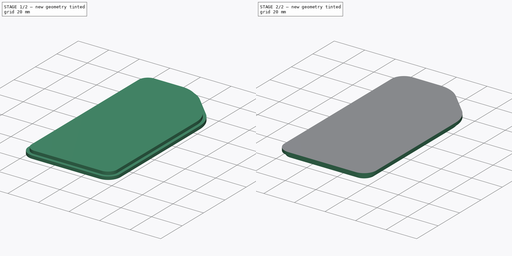
[diagram: build sequence overview — one tinted view per stage of 2, left to right]
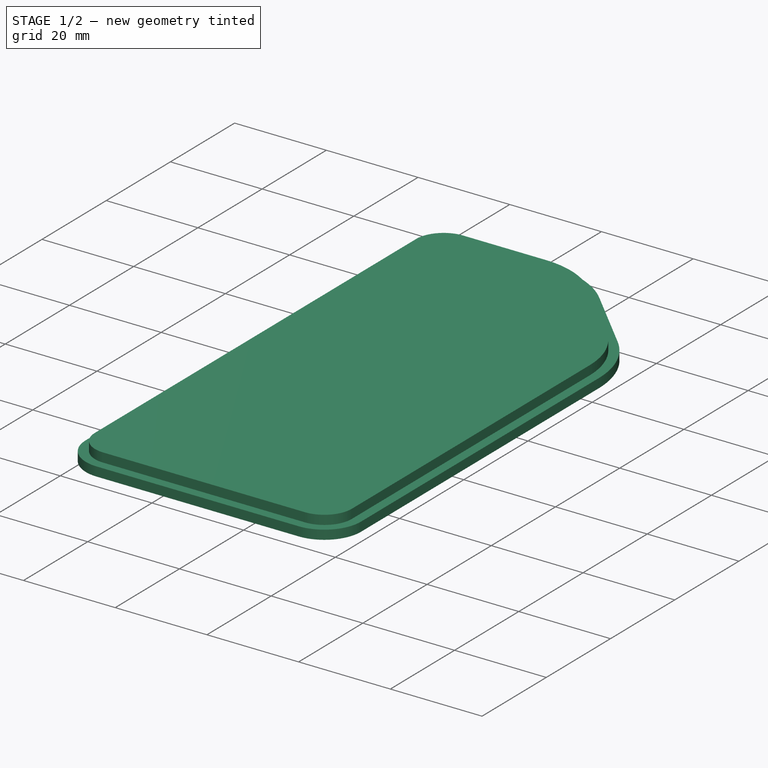
[diagram: stage 1 of 2 — iso view after this stage's code; geometry added in this stage tinted green]
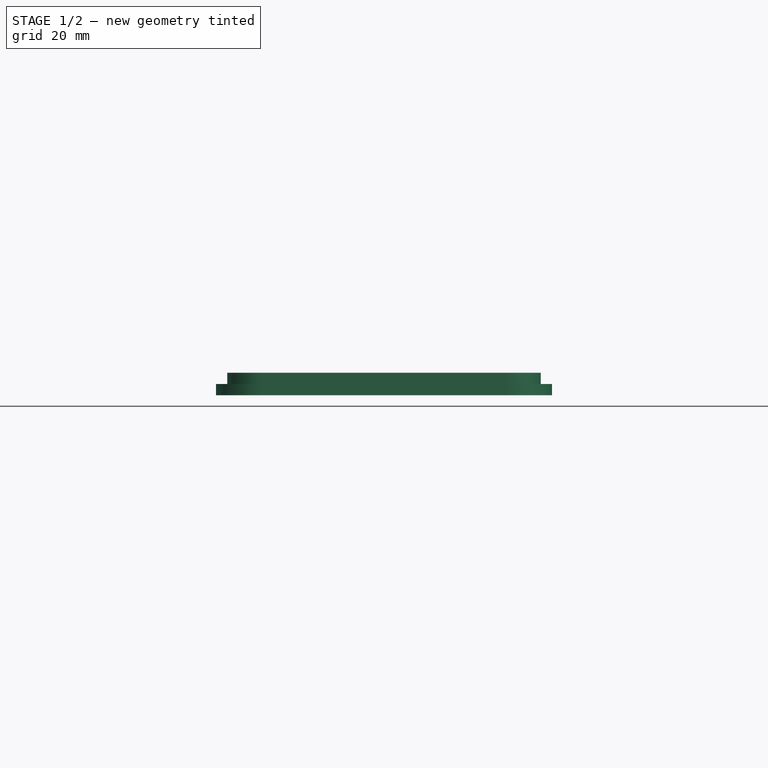
[diagram: stage 1 of 2 — front view after this stage's code; geometry added in this stage tinted green]
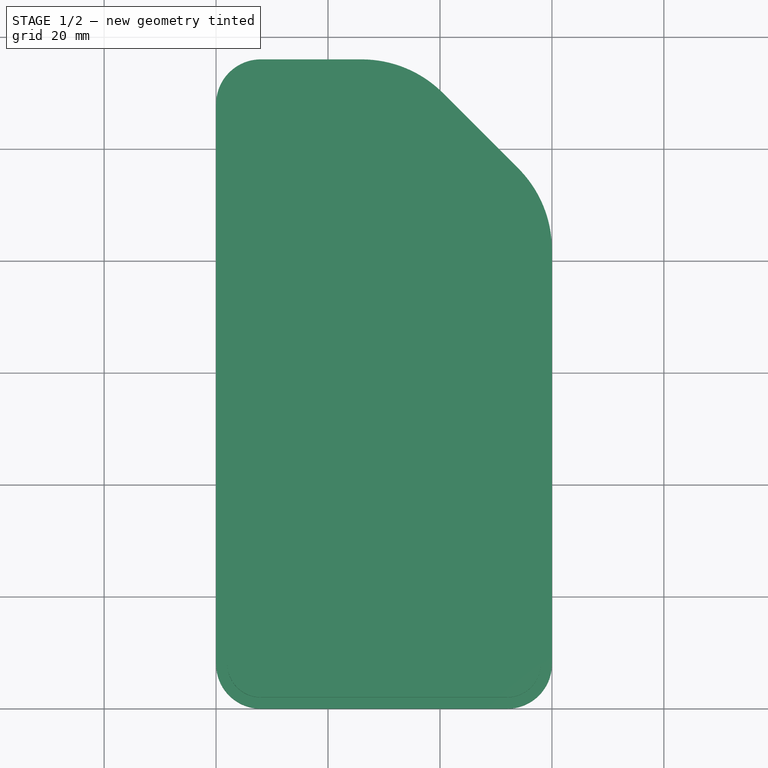
[diagram: stage 1 of 2 — top view after this stage's code; geometry added in this stage tinted green]
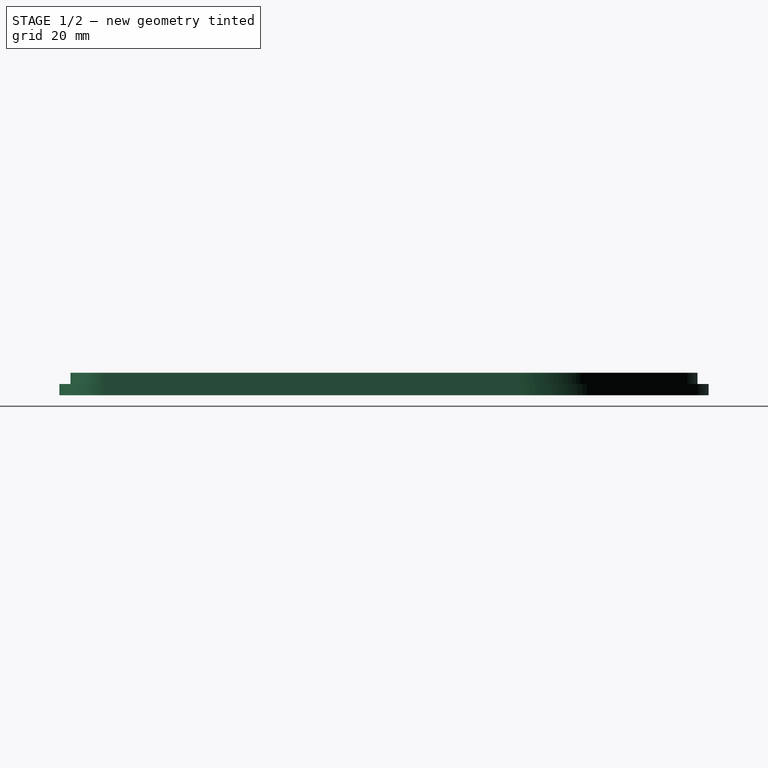
[diagram: stage 1 of 2 — right view after this stage's code; geometry added in this stage tinted green]
FCSTD DOCUMENT
Label: Lid
objects: Sketcher::SketchObject×2, PartDesign::Pad×2, Part::Mirroring×1
note: 7 computed .brp shape members not serialized (recipe doc carries the construction recipe); baked Part::Feature solids carry a one-line shape summary decoded from their .brp

FEATURE [Sketcher::SketchObject] Sketch
  sketch-geometry (10):
    g0: LineSegment StartX=60 StartY=8 StartZ=0 EndX=60 EndY=82 EndZ=0
    g1: LineSegment StartX=0 StartY=108 StartZ=0 EndX=0 EndY=8 EndZ=0
    g2: LineSegment StartX=8 StartY=116 StartZ=0 EndX=26 EndY=116 EndZ=0
    g3: LineSegment StartX=8 StartY=0 StartZ=0 EndX=52 EndY=0 EndZ=0
    g4: ArcOfCircle CenterX=8 CenterY=108 CenterZ=0 NormalX=0 NormalY=0 NormalZ=1 Radius=8 StartAngle=1.5708 EndAngle=3.14159
    g5: ArcOfCircle CenterX=52 CenterY=8 CenterZ=0 NormalX=0 NormalY=0 NormalZ=1 Radius=8 StartAngle=4.71239 EndAngle=6.28319
    g6: ArcOfCircle CenterX=8 CenterY=8 CenterZ=0 NormalX=0 NormalY=0 NormalZ=1 Radius=8 StartAngle=3.14159 EndAngle=4.71239
    g7: LineSegment StartX=40.5416 StartY=109.977 StartZ=0 EndX=53.9767 EndY=96.5416 EndZ=0
    g8: ArcOfCircle CenterX=26 CenterY=95.435 CenterZ=0 NormalX=0 NormalY=0 NormalZ=1 Radius=20.565 StartAngle=0.785399 EndAngle=1.5708
    g9: ArcOfCircle CenterX=39.435 CenterY=82 CenterZ=0 NormalX=0 NormalY=0 NormalZ=1 Radius=20.565 StartAngle=6.28319 EndAngle=7.06858
  constraints (34):
    c: Vertical(g0)
    c: Vertical(g1)
    c: Horizontal(g2)
    c: Horizontal(g3)
    c: Coincident(g6,g1)
    c: Coincident(g3,g6)
    c: Coincident(g3,g5)
    c: Coincident(g5,g0)
    c: Coincident(g2,g4)
    c: Coincident(g1,g4)
    c: Radius(g4) = 8
    c: Equal(g5,g6)
    c: Tangent(g4,g2)
    c: Tangent(g5,g3)
    c: DistanceX(g1,g0) = 60
    c: DistanceX(g1) = 0
    c: Tangent(g1,g4)
    c: Tangent(g3,g6)
    c: Tangent(g6,g1)
    c: DistanceY(g3) = 0
    c: Angle(g7) = -0.785398
    c: Coincident(g7,g8)
    c: Coincident(g8,g2)
    c: Tangent(g8,g2)
    c: Tangent(g7,g8)
    c: Coincident(g9,g7)
    c: Tangent(g9,g7)
    c: Coincident(g9,g0)
    c: Distance(g7) = 19
    c: Distance(g2) = 18
    c: Equal(g9,g8)
    c: Equal(g4,g6)
    c: Tangent(g0,g9)
    c: Tangent(g5,g0)
FEATURE [PartDesign::Pad] Pad
  Length = 2
  MirroredExtent = false
  Sketch = -> Sketch
FEATURE [Sketcher::SketchObject] Sketch001
  Placement = pos=(0,0,2) rot=(0,0,1;0rad)
  Support = -> Pad [Face12]
  sketch-geometry (10):
    g0: ArcOfCircle CenterX=8 CenterY=108 CenterZ=0 NormalX=0 NormalY=0 NormalZ=1 Radius=6 StartAngle=1.57079 EndAngle=3.14159
    g1: ArcOfCircle CenterX=26 CenterY=95.435 CenterZ=0 NormalX=0 NormalY=0 NormalZ=1 Radius=18.565 StartAngle=0.785398 EndAngle=1.5708
    g2: ArcOfCircle CenterX=39.435 CenterY=82 CenterZ=0 NormalX=0 NormalY=0 NormalZ=1 Radius=18.565 StartAngle=6.28319 EndAngle=7.06858
    g3: ArcOfCircle CenterX=52 CenterY=8 CenterZ=0 NormalX=0 NormalY=0 NormalZ=1 Radius=6 StartAngle=4.71239 EndAngle=6.28319
    g4: ArcOfCircle CenterX=8 CenterY=8 CenterZ=0 NormalX=0 NormalY=0 NormalZ=1 Radius=6 StartAngle=3.14159 EndAngle=4.71239
    g5: LineSegment StartX=8.00001 StartY=114 StartZ=0 EndX=26 EndY=114 EndZ=0
    g6: LineSegment StartX=2 StartY=108 StartZ=0 EndX=2 EndY=8 EndZ=0
    g7: LineSegment StartX=39.1274 StartY=108.562 StartZ=0 EndX=52.5624 EndY=95.1274 EndZ=0
    g8: LineSegment StartX=58 StartY=82 StartZ=0 EndX=58 EndY=8 EndZ=0
    g9: LineSegment StartX=8 StartY=2 StartZ=0 EndX=52 EndY=2 EndZ=0
  constraints (35):
    c: Horizontal(g5)
    c: Tangent(g5,g1)
    c: Coincident(g1,g5)
    c: Coincident(g0,g5)
    c: Vertical(g6)
    c: Tangent(g6,g0)
    c: Coincident(g4,g6)
    c: Coincident(g0,g6)
    c: Coincident(g2,g7)
    c: Coincident(g1,g7)
    c: Vertical(g8)
    c: Coincident(g3,g8)
    c: Coincident(g2,g8)
    c: Horizontal(g9)
    c: Coincident(g9,g3)
    c: Coincident(g9,g4)
    c: Radius(g0) = 6
    c: Equal(g0,g4)
    c: Tangent(g7,g1)
    c: Tangent(g2,g8)
    c: DistanceY(g2,g3) = -80
    c: Equal(g3,g4)
    c: Distance(g7) = 19
    c: Distance(g5) = 18
    c: DistanceX(g4) = 8
    c: DistanceY(g4) = 8
    c: Tangent(g2,g7)
    c: Tangent(g4,g6)
    c: Tangent(g4,g9)
    c: Tangent(g5,g0)
    c: Tangent(g3,g8)
    c: Tangent(g3,g9)
    c: DistanceX(g4,g3) = 44
    c: DistanceY(g6) = -100
    c: Radius(g2) = 18.565
FEATURE [PartDesign::Pad] Pad001
  Length = 2
  MirroredExtent = false
  Sketch = -> Sketch001
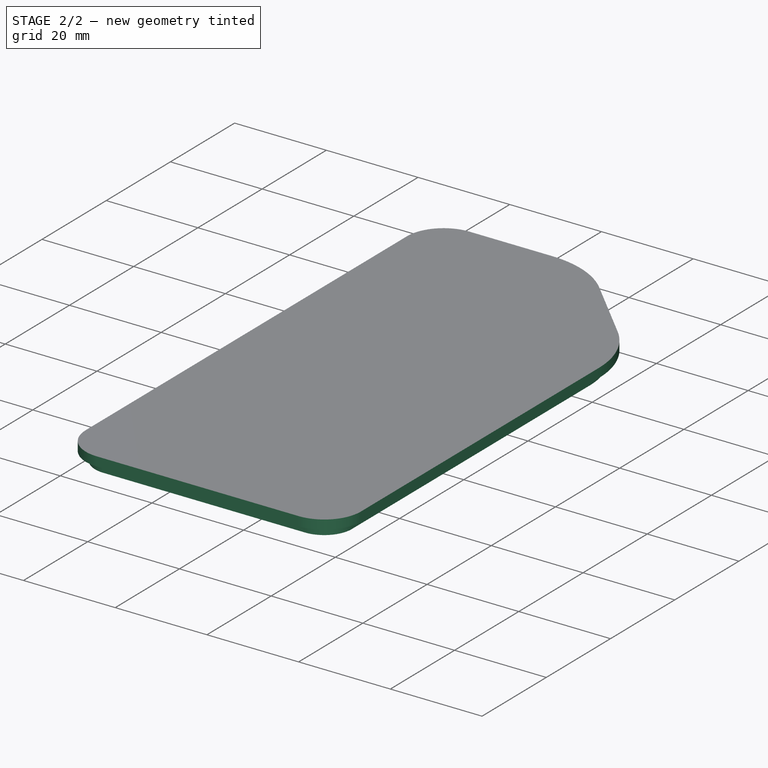
[diagram: stage 2 of 2 — iso view after this stage's code; geometry added in this stage tinted green]
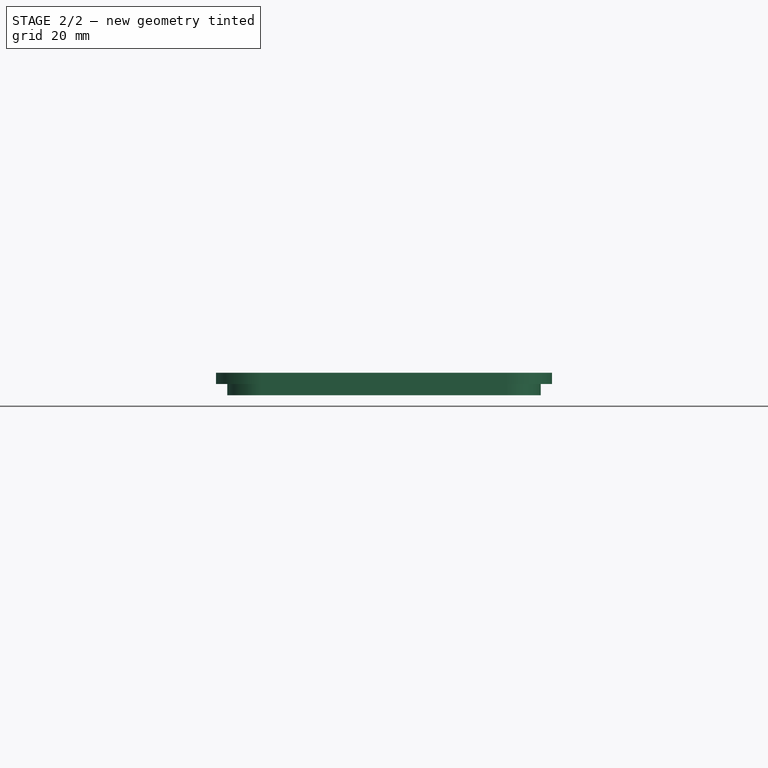
[diagram: stage 2 of 2 — front view after this stage's code; geometry added in this stage tinted green]
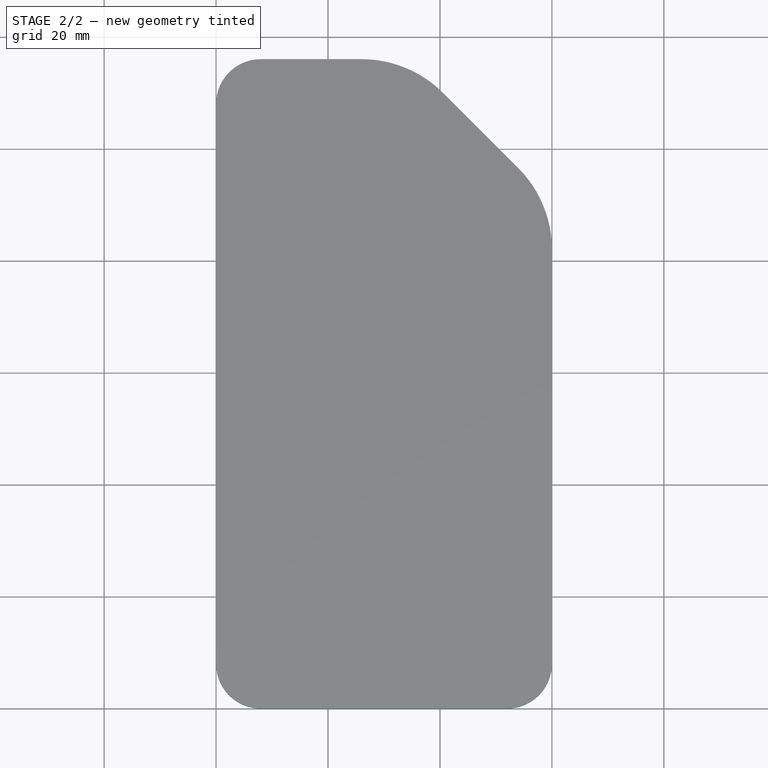
[diagram: stage 2 of 2 — top view after this stage's code; geometry added in this stage tinted green]
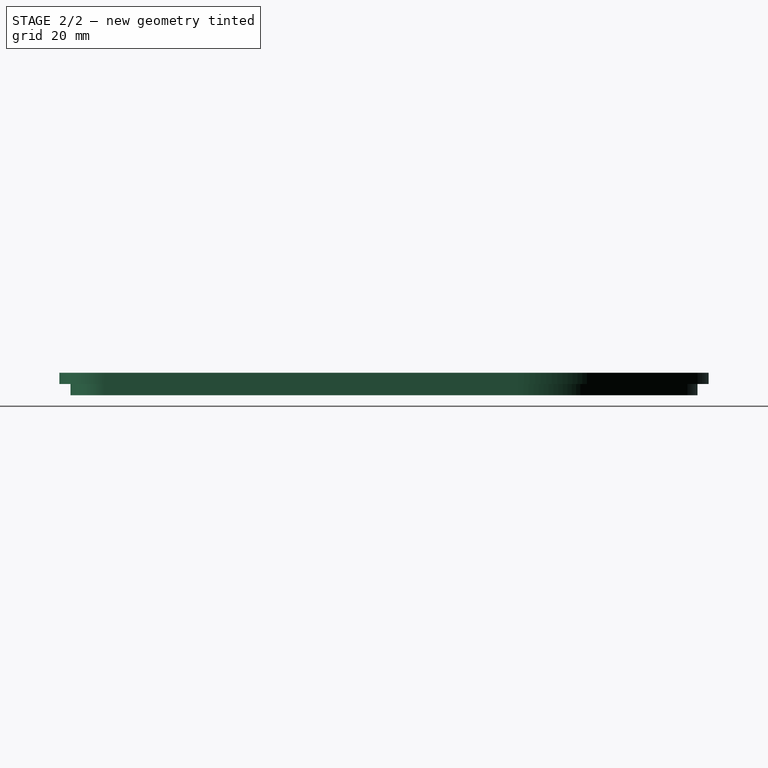
[diagram: stage 2 of 2 — right view after this stage's code; geometry added in this stage tinted green]
FEATURE [Part::Mirroring] Part__Mirroring  label="Pad001 (Mirror #1)"
  Base = (0,0,0)
  Normal = (0,0,1)
  Source = -> Pad001
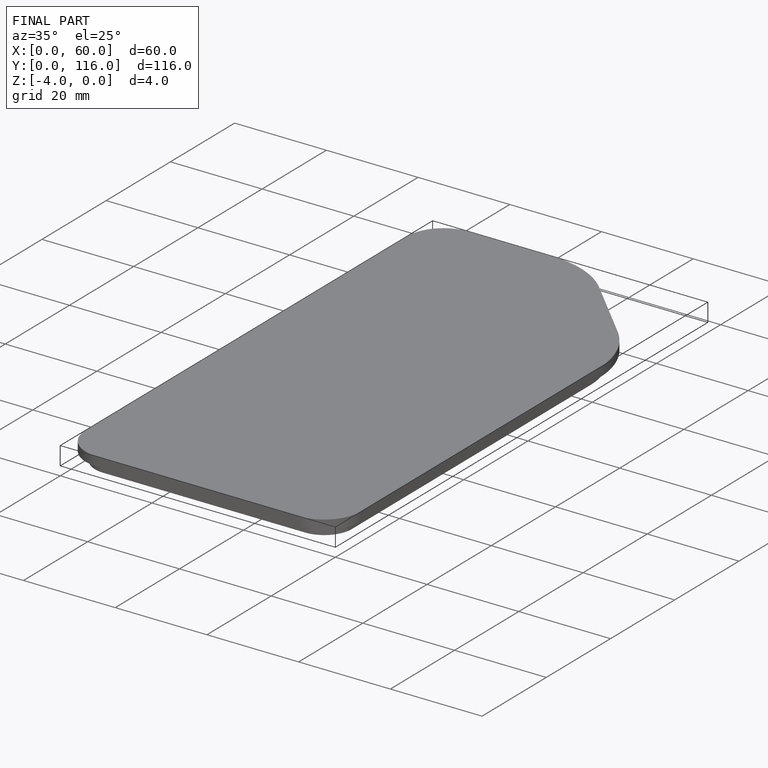
[diagram: finished part — iso view with bounding-box wireframe]
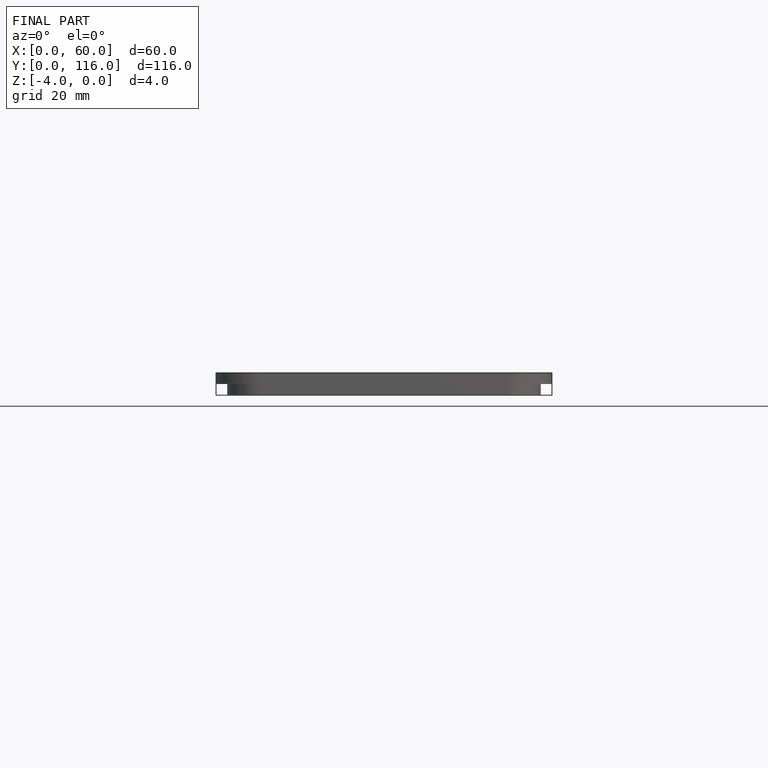
[diagram: finished part — front view with bounding-box wireframe]
